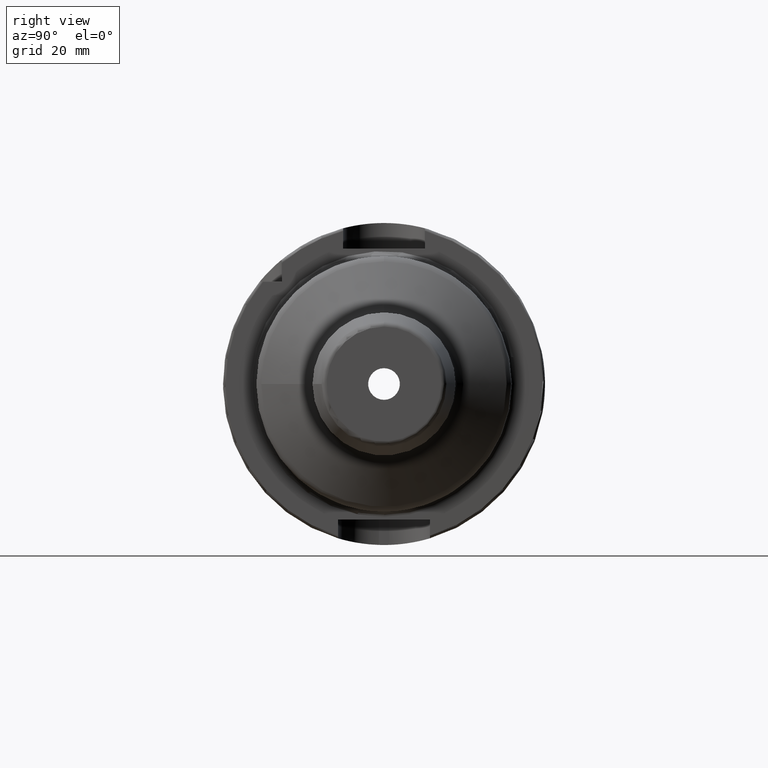
[diagram: clean part render]
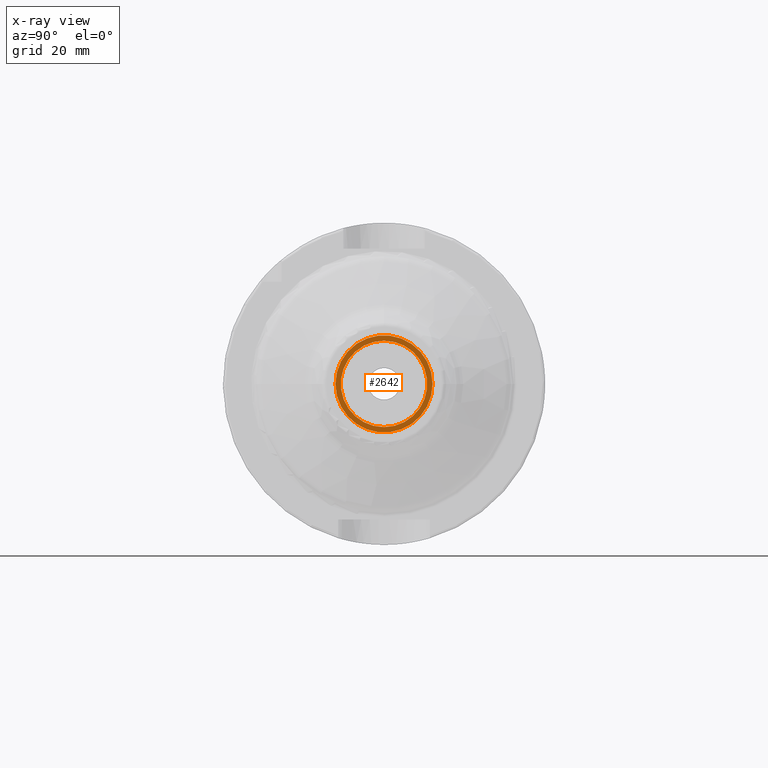
[diagram: x-ray — body ghosted, one internal face saturated and labeled with its STEP entity id]
A machine part, right view, then the same camera in x-ray: the body is ghosted and one INTERNAL B-rep face — a face not visible from any outside direction — is saturated and labeled: STEP entity #2642.
In plain terms, the highlighted planar face has unit normal (-1, 0, 0).
Its self-contained STEP definition (entity closure, byte-faithful):
#105=FACE_BOUND('',#704,.T.);
#147=PLANE('',#3005);
#561=FACE_OUTER_BOUND('',#703,.T.);
#703=EDGE_LOOP('',(#2430,#2431));
#704=EDGE_LOOP('',(#2432,#2433));
#907=CIRCLE('',#2985,8.45873400000001);
#908=CIRCLE('',#2986,8.45873400000001);
#920=CIRCLE('',#3003,9.5);
#921=CIRCLE('',#3004,9.5);
#1202=VERTEX_POINT('',#5463);
#1203=VERTEX_POINT('',#5465);
#1213=VERTEX_POINT('',#5495);
#1214=VERTEX_POINT('',#5497);
#1609=EDGE_CURVE('',#1203,#1202,#907,.T.);
#1610=EDGE_CURVE('',#1202,#1203,#908,.T.);
#1625=EDGE_CURVE('',#1213,#1214,#920,.T.);
#1626=EDGE_CURVE('',#1214,#1213,#921,.T.);
#2430=ORIENTED_EDGE('',*,*,#1626,.F.);
#2431=ORIENTED_EDGE('',*,*,#1625,.F.);
#2432=ORIENTED_EDGE('',*,*,#1609,.T.);
#2433=ORIENTED_EDGE('',*,*,#1610,.T.);
#2642=ADVANCED_FACE('',(#561,#105),#147,.F.);
#2985=AXIS2_PLACEMENT_3D('',#5466,#3768,#3769);
#2986=AXIS2_PLACEMENT_3D('',#5467,#3770,#3771);
#3003=AXIS2_PLACEMENT_3D('',#5498,#3807,#3808);
#3004=AXIS2_PLACEMENT_3D('',#5499,#3809,#3810);
#3005=AXIS2_PLACEMENT_3D('',#5500,#3811,#3812);
#3768=DIRECTION('center_axis',(-1.,0.,0.));
#3769=DIRECTION('ref_axis',(0.,0.,1.));
#3770=DIRECTION('center_axis',(-1.,0.,0.));
#3771=DIRECTION('ref_axis',(0.,0.,1.));
#3807=DIRECTION('center_axis',(-1.,0.,0.));
#3808=DIRECTION('ref_axis',(0.,0.,1.));
#3809=DIRECTION('center_axis',(-1.,0.,0.));
#3810=DIRECTION('ref_axis',(0.,0.,1.));
#3811=DIRECTION('center_axis',(-1.,0.,0.));
#3812=DIRECTION('ref_axis',(0.,0.,1.));
#5463=CARTESIAN_POINT('',(24.,-1.03589615179389E-15,-8.458734));
#5465=CARTESIAN_POINT('',(24.,0.,8.458734));
#5466=CARTESIAN_POINT('Origin',(24.,0.,0.));
#5467=CARTESIAN_POINT('Origin',(24.,0.,0.));
#5495=CARTESIAN_POINT('',(24.,-9.50000000000001,1.16341445918999E-15));
#5497=CARTESIAN_POINT('',(24.,9.5,0.));
#5498=CARTESIAN_POINT('Origin',(24.,0.,0.));
#5499=CARTESIAN_POINT('Origin',(24.,0.,0.));
#5500=CARTESIAN_POINT('Origin',(24.,7.5,0.));